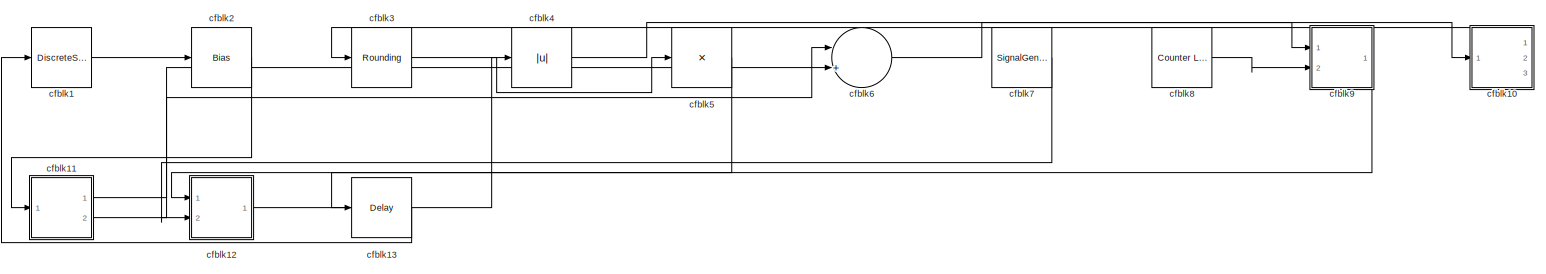
[diagram: root canvas - part 1/1, most of the canvas]
MODEL slx_1b245d6e8544
KIND model
CONFIG AbsTol = auto
CONFIG EnableMultiTasking = off
CONFIG FixedStep = auto
CONFIG MaxStep = auto
CONFIG MinStep = auto
CONFIG RelTol = 1e-3
CONFIG SampleTimeConstraint = Unconstrained
CONFIG SolverName = VariableStepAuto
CONFIG StartTime = 0.0
CONFIG StopTime = 10.0
BLOCK [DiscreteStateSpace] cfblk1
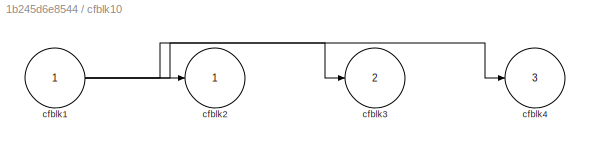
BLOCK [SubSystem] cfblk10
  Ports = [1, 3]
  RequestExecContextInheritance = off
BLOCK [Inport] cfblk10/cfblk1
BLOCK [Outport] cfblk10/cfblk2
BLOCK [Outport] cfblk10/cfblk3
  Port = 2
BLOCK [Outport] cfblk10/cfblk4
  Port = 3
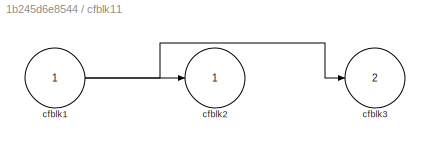
BLOCK [SubSystem] cfblk11
  Ports = [1, 2]
  RequestExecContextInheritance = off
BLOCK [Inport] cfblk11/cfblk1
BLOCK [Outport] cfblk11/cfblk2
BLOCK [Outport] cfblk11/cfblk3
  Port = 2
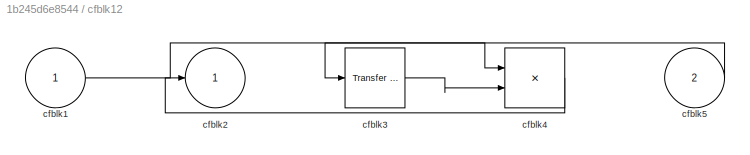
BLOCK [SubSystem] cfblk12
  Ports = [2, 1]
  RequestExecContextInheritance = off
BLOCK [Inport] cfblk12/cfblk1
BLOCK [Outport] cfblk12/cfblk2
BLOCK [Reference] cfblk12/cfblk3  REF=simulink/Discrete/Transfer Fcn
First Order
  Ports = [1, 1]
  SourceBlock = simulink/Discrete/Transfer Fcn\nFirst Order
  SourceProductBaseCode = SL
  SourceType = First Order Transfer Fcn
BLOCK [Product] cfblk12/cfblk4
  Inputs = **
  Ports = [2, 1]
BLOCK [Inport] cfblk12/cfblk5
  Port = 2
BLOCK [Delay] cfblk13
  InputPortMap = u0
  Ports = [1, 1]
  SampleTime = 1
BLOCK [Bias] cfblk2
  Bias = [685292926.172740]
  SaturateOnIntegerOverflow = off
BLOCK [Rounding] cfblk3
BLOCK [Abs] cfblk4
  SaturateOnIntegerOverflow = off
BLOCK [Product] cfblk5
  Inputs = *
  Ports = [1, 1]
BLOCK [Sum] cfblk6
  Inputs = |++
  Ports = [2, 1]
BLOCK [SignalGenerator] cfblk7
  Amplitude = [-287684201.029007]
  Ports = [0, 1]
BLOCK [Reference] cfblk8  REF=simulink/Sources/Counter
Limited
  Ports = [0, 1]
  SourceBlock = simulink/Sources/Counter\nLimited
  SourceProductBaseCode = SL
  SourceType = Counter Limited
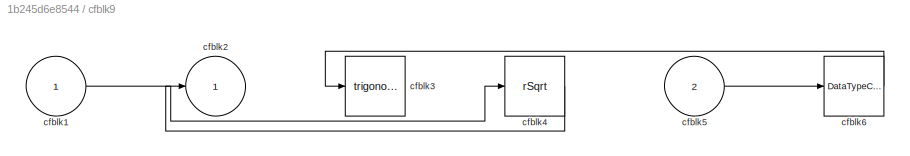
BLOCK [SubSystem] cfblk9
  Ports = [2, 1]
  RequestExecContextInheritance = off
BLOCK [Inport] cfblk9/cfblk1
BLOCK [Outport] cfblk9/cfblk2
BLOCK [Trigonometry] cfblk9/cfblk3
  Ports = [1, 1]
BLOCK [Sqrt] cfblk9/cfblk4
  AlgorithmType = Newton-Raphson
  Operator = rSqrt
BLOCK [Inport] cfblk9/cfblk5
  Port = 2
BLOCK [DataTypeConversion] cfblk9/cfblk6
  RndMeth = Floor
  SaturateOnIntegerOverflow = off
NET cfblk10/cfblk1:1 -> cfblk10/cfblk2:1, cfblk10/cfblk3:1, cfblk10/cfblk4:1
LINE cfblk10:1 -> cfblk3:1
NET cfblk11/cfblk1:1 -> cfblk11/cfblk2:1, cfblk11/cfblk3:1
LINE cfblk11:1 -> cfblk6:1
LINE cfblk11:2 -> cfblk6:2
LINE cfblk12/cfblk1:1 -> cfblk12/cfblk4:1
LINE cfblk12/cfblk3:1 -> cfblk12/cfblk4:2
LINE cfblk12/cfblk4:1 -> cfblk12/cfblk2:1
LINE cfblk12/cfblk5:1 -> cfblk12/cfblk3:1
LINE cfblk12:1 -> cfblk4:1
LINE cfblk13:1 -> cfblk1:1
LINE cfblk1:1 -> cfblk2:1
LINE cfblk2:1 -> cfblk11:1
LINE cfblk3:1 -> cfblk5:1
LINE cfblk4:1 -> cfblk10:1
LINE cfblk5:1 -> cfblk13:1
LINE cfblk6:1 -> cfblk9:1
LINE cfblk7:1 -> cfblk12:2
LINE cfblk8:1 -> cfblk9:2
LINE cfblk9/cfblk1:1 -> cfblk9/cfblk4:1
LINE cfblk9/cfblk4:1 -> cfblk9/cfblk2:1
LINE cfblk9/cfblk5:1 -> cfblk9/cfblk6:1
LINE cfblk9/cfblk6:1 -> cfblk9/cfblk3:1
LINE cfblk9:1 -> cfblk12:1
note: NET lines group one-source signal fan-out (src -> all destinations, sorted); 1:1 wires keep LINE
